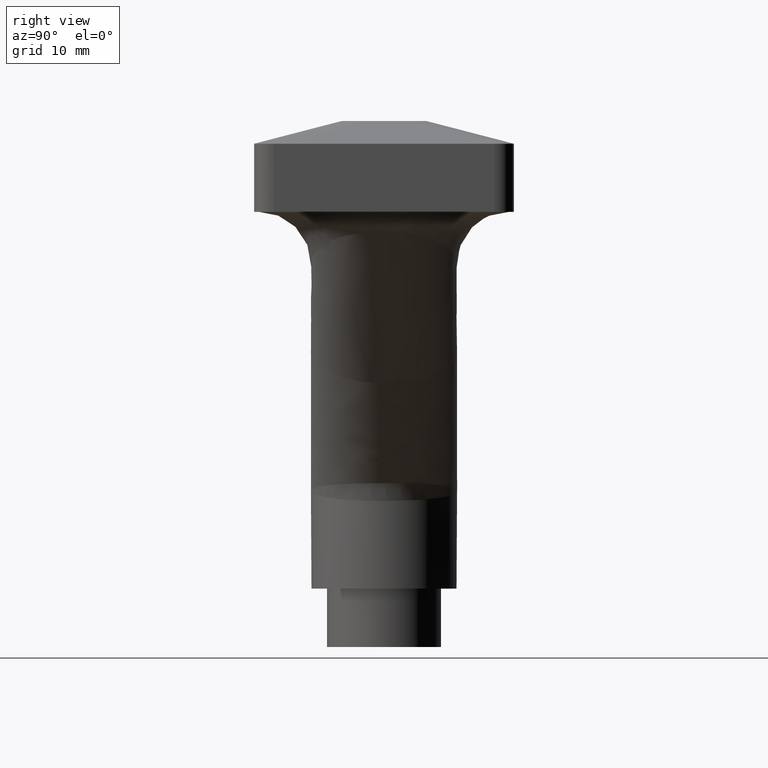
[diagram: clean part render]
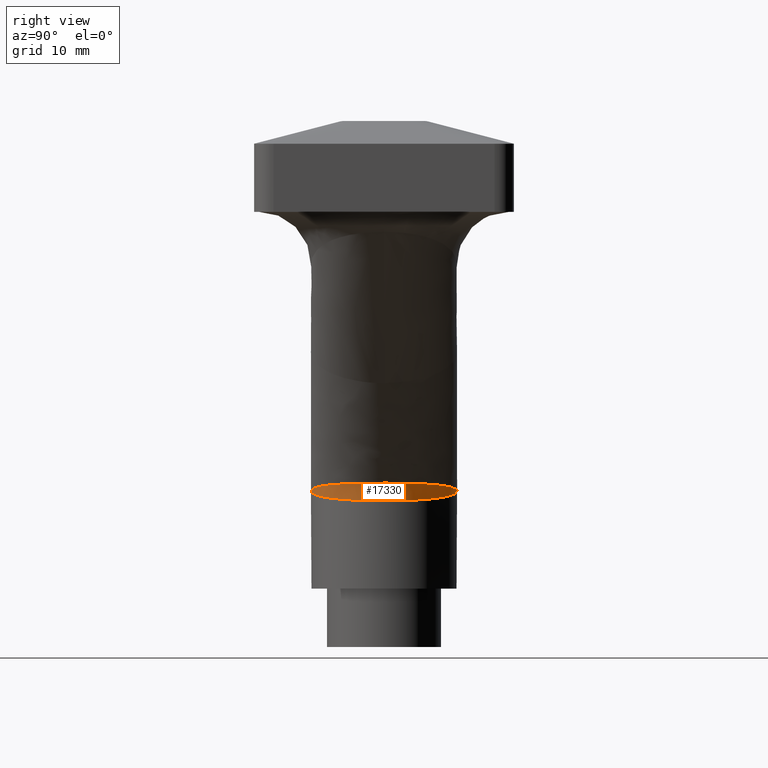
[diagram: same view with one face highlighted and labeled with its STEP entity id]
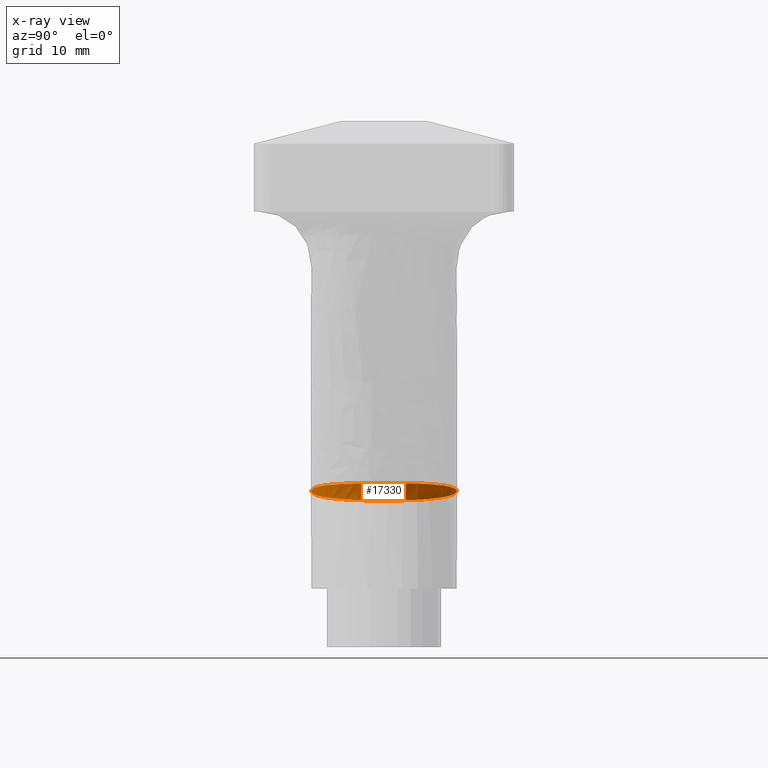
[diagram: x-ray of the same camera — body ghosted, the highlighted face saturated]
A machine part, right view. The second image highlights one B-rep face of the part: STEP entity #17330.
The next image is the same camera in x-ray: the body ghosted, the highlighted face saturated — about 0% of this face is hidden behind the body in this view.
In plain terms, the highlighted face is a freeform B-spline surface patch.
Its self-contained STEP definition (entity closure, byte-faithful):
#2 = CARTESIAN_POINT ( 'NONE',  ( -14.46911674401709469, 0.7947414116044511090, -41.76113849630957731 ) ) ;
#65 = CARTESIAN_POINT ( 'NONE',  ( -15.95157075134375368, -3.928114064448408271, -43.00325043594772012 ) ) ;
#126 = CARTESIAN_POINT ( 'NONE',  ( -17.06950707961534874, 7.141244198358809747, -41.93342681178742026 ) ) ;
#184 = CARTESIAN_POINT ( 'NONE',  ( -16.24075712462175503, 4.630883620239373499, -43.00446631939300346 ) ) ;
#212 = CARTESIAN_POINT ( 'NONE',  ( -18.67549453337363019, -8.652442950526745946, -42.06809636578782374 ) ) ;
#252 = CARTESIAN_POINT ( 'NONE',  ( -16.73247225243718717, -5.594318608624479161, -43.00673226206051680 ) ) ;
#253 = CARTESIAN_POINT ( 'NONE',  ( -25.58216729560727742, 11.21397373183285495, -43.13660839719678108 ) ) ;
#274 = CARTESIAN_POINT ( 'NONE',  ( -24.97044085197500252, -11.16962558149342755, -42.79392909316064930 ) ) ;
#313 = CARTESIAN_POINT ( 'NONE',  ( -17.56832688359192574, -7.687568679236650659, -41.97111431806030168 ) ) ;
#364 = CARTESIAN_POINT ( 'NONE',  ( -18.76308947396244520, -8.175703411586049185, -43.01395758778073741 ) ) ;
#366 = CARTESIAN_POINT ( 'NONE',  ( -23.59614004035501367, -10.89316419302977401, -43.42886566051410568 ) ) ;
#424 = CARTESIAN_POINT ( 'NONE',  ( -26.49744186247774280, -11.24999970915255965, -43.00000000000000711 ) ) ;
#425 = CARTESIAN_POINT ( 'NONE',  ( -15.62026678717410810, 2.957028310466824461, -44.43805212797568771 ) ) ;
#479 = CARTESIAN_POINT ( 'NONE',  ( -15.24926391848091711, -0.7351613917972392720, -44.47769005091761585 ) ) ;
#537 = CARTESIAN_POINT ( 'NONE',  ( -24.97935621732695211, -11.17055455412848808, -42.79511878126804447 ) ) ;
#538 = CARTESIAN_POINT ( 'NONE',  ( -22.91557309642571028, 10.68927373741837883, -43.52476940037698228 ) ) ;
#615 = CARTESIAN_POINT ( 'NONE',  ( -21.30311468171667144, 10.22483602625616683, -42.33754735207398312 ) ) ;
#1178 = B_SPLINE_CURVE_WITH_KNOTS ( 'NONE', 3,
 ( #11539, #14213, #15501, #5770, #7249, #253, #11483, #12869, #14276, #538, #4830, #11596, #11762, #4599, #17325, #14611, #6235, #14500, #3353, #10177, #3176, #425, #6176, #10401, #3295, #10345, #479, #12992, #8985, #15964, #1766, #3234, #15854, #17384, #14388, #10228, #16021, #7650, #1999, #6009, #11818, #7592, #17443, #366, #1825, #11654, #1942, #8921, #7481, #15796, #6114, #3413, #8869 ),
 .UNSPECIFIED., .F., .F.,
 ( 4, 2, 1, 2, 2, 2, 2, 2, 2, 2, 2, 2, 2, 2, 2, 2, 2, 2, 2, 2, 2, 2, 2, 2, 2, 2, 4 ),
 ( -3.937414685807313284E-05, 0.0002351514313479150810, 0.0005096770095539032881, 0.001058728165965872221, 0.002156830478789810955, 0.004353035104437684086, 0.006549239730085557216, 0.007647342042909500287, 0.008745444355733442490, 0.01094164898138131649, 0.01313785360702918702, 0.01533405823267705928, 0.01643216054550099281, 0.01753026285832492981, 0.01972646748397280034, 0.02082456979679673040, 0.02192267210962066393, 0.02411887673526854139, 0.02631508136091641192, 0.02741318367374035239, 0.02851128598656428939, 0.03070749061221216339, 0.03290369523786003392, 0.03400179755068397786, 0.03455084870709595329, 0.03482537428530194101, 0.03509989986350793567 ),
 .UNSPECIFIED. ) ;
#1231 = CARTESIAN_POINT ( 'NONE',  ( -19.91756674808438987, 9.130906617875918840, -43.01602534153756352 ) ) ;
#1355 = CARTESIAN_POINT ( 'NONE',  ( -25.03065169399222611, 11.17727713108887144, -43.21876769676117647 ) ) ;
#1413 = CARTESIAN_POINT ( 'NONE',  ( -16.74385633907577997, 5.614163120921024763, -43.00664902705672432 ) ) ;
#1474 = CARTESIAN_POINT ( 'NONE',  ( -14.77270427090924798, -2.678699447595542793, -41.77793693295127042 ) ) ;
#1532 = CARTESIAN_POINT ( 'NONE',  ( -15.11736108307423798, -3.790551838510282767, -41.79825119869310157 ) ) ;
#1591 = CARTESIAN_POINT ( 'NONE',  ( -14.61777249056108019, 1.960633117555177662, -41.76960416017974609 ) ) ;
#1652 = CARTESIAN_POINT ( 'NONE',  ( -16.94916552547958943, -5.956456785236810880, -44.29470023192562422 ) ) ;
#1707 = CARTESIAN_POINT ( 'NONE',  ( -25.02425128309263513, -11.15885909562503642, -43.21984271476088679 ) ) ;
#1730 = CARTESIAN_POINT ( 'NONE',  ( -19.61380637851528519, -9.315542654955892843, -42.15774418003532276 ) ) ;
#1765 = CARTESIAN_POINT ( 'NONE',  ( -17.56343822535065158, -6.873254689315736243, -44.22434305570918411 ) ) ;
#1766 = CARTESIAN_POINT ( 'NONE',  ( -15.84169776112975825, -3.619465920377436863, -44.41624822221944413 ) ) ;
#1825 = CARTESIAN_POINT ( 'NONE',  ( -24.66822037685117408, -11.10584601066486599, -43.27231993850022462 ) ) ;
#1843 = CARTESIAN_POINT ( 'NONE',  ( -26.49740553563398748, 11.24999970083354839, -43.00000000000000711 ) ) ;
#1941 = CARTESIAN_POINT ( 'NONE',  ( -19.03779532935992336, -8.427273124601445176, -43.01464925979498588 ) ) ;
#1942 = CARTESIAN_POINT ( 'NONE',  ( -25.57707192295873710, -11.21357904312848319, -43.13775037827159053 ) ) ;
#1999 = CARTESIAN_POINT ( 'NONE',  ( -19.67232502967480201, -8.948819689654499143, -43.96513494312738146 ) ) ;
#2496 = CARTESIAN_POINT ( 'NONE',  ( -20.52648976254179658, 9.540340014360959131, -43.01658091250813953 ) ) ;
#2558 = CARTESIAN_POINT ( 'NONE',  ( -20.84098088874171850, 9.730277911261635992, -43.01669557127725341 ) ) ;
#2678 = CARTESIAN_POINT ( 'NONE',  ( -26.49740553563499645, 11.24999970083354484, -43.00000000000000711 ) ) ;
#2805 = CARTESIAN_POINT ( 'NONE',  ( -15.39620347651425902, 1.844741563594306966, -43.00063812107137551 ) ) ;
#2873 = CARTESIAN_POINT ( 'NONE',  ( -15.25981828269884488, -4.155765258472918333, -41.80691279509106550 ) ) ;
#2934 = CARTESIAN_POINT ( 'NONE',  ( -14.55403909127720574, 1.572363555273426305, -41.76597860410745255 ) ) ;
#2994 = CARTESIAN_POINT ( 'NONE',  ( -15.34334504087632745, 1.493092636255332284, -44.46734173678145652 ) ) ;
#3020 = CARTESIAN_POINT ( 'NONE',  ( -17.52051141143902768, -7.638676014643948520, -41.96722200294333049 ) ) ;
#3059 = CARTESIAN_POINT ( 'NONE',  ( -17.58575260779879201, 7.702156323222792977, -41.97409463847689182 ) ) ;
#3141 = CARTESIAN_POINT ( 'NONE',  ( -15.55563297271906009, -4.812852126086182736, -41.82555227633538664 ) ) ;
#3175 = CARTESIAN_POINT ( 'NONE',  ( -19.89999321472025429, -9.118219268827758128, -43.01623359207562913 ) ) ;
#3176 = CARTESIAN_POINT ( 'NONE',  ( -15.83658169739675792, 3.660172870090232955, -44.41510499741705331 ) ) ;
#3233 = CARTESIAN_POINT ( 'NONE',  ( -24.66200168467489462, -11.10485239208488117, -43.27323462275182919 ) ) ;
#3234 = CARTESIAN_POINT ( 'NONE',  ( -15.96786451558549658, -3.971748677838647712, -44.40282091487250682 ) ) ;
#3295 = CARTESIAN_POINT ( 'NONE',  ( -15.26926728597367244, 0.7560250582683490927, -44.47521263869046493 ) ) ;
#3352 = CARTESIAN_POINT ( 'NONE',  ( -18.42504462034126789, -8.450195304203958813, -42.04550487658994484 ) ) ;
#3353 = CARTESIAN_POINT ( 'NONE',  ( -16.76191516113042823, 5.681018418691528460, -44.31355568017183089 ) ) ;
#3413 = CARTESIAN_POINT ( 'NONE',  ( -26.40694965745311151, -11.24997913212934897, -43.01360129326869242 ) ) ;
#3459 = VERTEX_POINT ( 'NONE', #6076 ) ;
#3924 = CARTESIAN_POINT ( 'NONE',  ( -19.62315439718236476, 8.911310303245075559, -43.01558385284661057 ) ) ;
#3988 = CARTESIAN_POINT ( 'NONE',  ( -20.66948983342302526, 9.910744197856761417, -42.26890454295485000 ) ) ;
#4106 = CARTESIAN_POINT ( 'NONE',  ( -20.33479185297075986, 9.736704850860336435, -42.23319516319197930 ) ) ;
#4231 = CARTESIAN_POINT ( 'NONE',  ( -16.39674211422352457, 4.962396347060452406, -43.00515662234126779 ) ) ;
#4299 = CARTESIAN_POINT ( 'NONE',  ( -15.34155777001407905, 1.478859367613657216, -43.00038810729191141 ) ) ;
#4361 = CARTESIAN_POINT ( 'NONE',  ( -16.23079218618648767, -4.608996626774374050, -43.00452071070296256 ) ) ;
#4425 = CARTESIAN_POINT ( 'NONE',  ( -15.25038250020901387, 0.3836531870640085273, -44.47726192814077706 ) ) ;
#4448 = CARTESIAN_POINT ( 'NONE',  ( -16.33176998081586362, -6.148012655563179329, -41.87790047838266361 ) ) ;
#4487 = CARTESIAN_POINT ( 'NONE',  ( -15.83401087116536132, 3.652386813083718486, -44.41537941161394087 ) ) ;
#4598 = CARTESIAN_POINT ( 'NONE',  ( -21.51627089436509621, -10.11306818974757071, -43.72132958674882985 ) ) ;
#4599 = CARTESIAN_POINT ( 'NONE',  ( -19.68881417153165359, 8.961364230379690099, -43.96034986496109553 ) ) ;
#4659 = CARTESIAN_POINT ( 'NONE',  ( -21.32696826786933642, -10.23573277808021054, -42.33892419355640158 ) ) ;
#4676 = CARTESIAN_POINT ( 'NONE',  ( -15.56636670400174438, 4.829636278778485448, -41.82735416059172451 ) ) ;
#4705 = CARTESIAN_POINT ( 'NONE',  ( -26.12834670329180398, -11.24991578060141251, -43.05547990984598528 ) ) ;
#4788 = CARTESIAN_POINT ( 'NONE',  ( -14.44738675272971129, 0.3956377533312323558, -41.75989195142176413 ) ) ;
#4830 = CARTESIAN_POINT ( 'NONE',  ( -21.54799188290501633, 10.12848976248457689, -43.71490185306364396 ) ) ;
#4907 = CARTESIAN_POINT ( 'NONE',  ( -17.02172422566618337, 7.084969823060153438, -41.92975248700832935 ) ) ;
#5343 = CARTESIAN_POINT ( 'NONE',  ( -19.10535093480466884, 8.486315337945294246, -44.03428308461354845 ) ) ;
#5468 = CARTESIAN_POINT ( 'NONE',  ( -18.82818457912297561, 8.236623947191356265, -44.06878034061466565 ) ) ;
#5581 = CARTESIAN_POINT ( 'NONE',  ( -21.82596193641333571, 10.24005608079314555, -43.01622181056117000 ) ) ;
#5645 = CARTESIAN_POINT ( 'NONE',  ( -15.32028846530202593, -1.451492317450446823, -43.00031343722828581 ) ) ;
#5709 = CARTESIAN_POINT ( 'NONE',  ( -15.24928493011656805, -0.7265711148341090775, -42.99997820809763738 ) ) ;
#5769 = CARTESIAN_POINT ( 'NONE',  ( -16.40712043956797572, -4.983419930667337461, -44.35518282448214933 ) ) ;
#5770 = CARTESIAN_POINT ( 'NONE',  ( -26.13006095518148442, 11.24429138543998619, -43.05498504087139366 ) ) ;
#5780 = FACE_OUTER_BOUND ( 'NONE', #7194, .T. ) ;
#5795 = CARTESIAN_POINT ( 'NONE',  ( -25.73073873401994405, -11.23374277655336329, -42.89589745862171810 ) ) ;
#5829 = CARTESIAN_POINT ( 'NONE',  ( -15.61781907500206756, -2.876788785848626961, -43.00170477885787790 ) ) ;
#5891 = CARTESIAN_POINT ( 'NONE',  ( -14.86840856154816848, 3.101862607182154008, -41.78412896328880066 ) ) ;
#5913 = CARTESIAN_POINT ( 'NONE',  ( -22.73432130963582409, -10.73974717088506914, -42.50524593702208875 ) ) ;
#5952 = CARTESIAN_POINT ( 'NONE',  ( -24.60548484657245183, -11.12336474996875779, -42.74551364603286885 ) ) ;
#6008 = CARTESIAN_POINT ( 'NONE',  ( -23.58702672575732251, -10.89086886029172341, -43.43018293488581349 ) ) ;
#6009 = CARTESIAN_POINT ( 'NONE',  ( -19.96763417237547600, -9.166489074497082612, -43.92704812923691549 ) ) ;
#6063 = CARTESIAN_POINT ( 'NONE',  ( -22.76429302119854370, -10.74807910921737353, -42.50895823809206320 ) ) ;
#6076 = CARTESIAN_POINT ( 'NONE',  ( -26.49744186247852085, -11.24999970915255787, -43.00000000000000000 ) ) ;
#6082 = CARTESIAN_POINT ( 'NONE',  ( -20.61203853632175509, 9.902468620232543373, -42.26142051268448796 ) ) ;
#6114 = CARTESIAN_POINT ( 'NONE',  ( -26.31372860708166783, -11.24883578088096492, -43.02760072011336234 ) ) ;
#6175 = CARTESIAN_POINT ( 'NONE',  ( -18.72623010008945599, -8.691917467369689732, -42.07275359524980018 ) ) ;
#6176 = CARTESIAN_POINT ( 'NONE',  ( -15.39973109540211027, 1.866563164859262880, -44.46139367190538394 ) ) ;
#6196 = CARTESIAN_POINT ( 'NONE',  ( -15.09625901240593393, 3.785277722537451872, -41.79751512003887370 ) ) ;
#6197 = ORIENTED_EDGE ( 'NONE', *, *, #14512, .F. ) ;
#6235 = CARTESIAN_POINT ( 'NONE',  ( -18.05286347208557629, 7.466853264604533358, -44.16377745652111741 ) ) ;
#6255 = CARTESIAN_POINT ( 'NONE',  ( -14.52694335336028963, -1.526745321984547932, -41.76398841502003023 ) ) ;
#6492 = CARTESIAN_POINT ( 'NONE',  ( -26.49740553563398748, 11.24999970083354839, -43.00000000000000711 ) ) ;
#6745 = CARTESIAN_POINT ( 'NONE',  ( -26.49740553563498935, 11.24999970083354484, -43.00000000000000000 ) ) ;
#6812 = CARTESIAN_POINT ( 'NONE',  ( -22.85842989001862691, 10.67045362902019789, -43.01464251272108186 ) ) ;
#6881 = CARTESIAN_POINT ( 'NONE',  ( -26.49740553563499290, 11.24999970083354484, -43.00000000000000711 ) ) ;
#6935 = CARTESIAN_POINT ( 'NONE',  ( -21.35560053430533856, 10.22788666143502567, -42.34485739771651680 ) ) ;
#6995 = CARTESIAN_POINT ( 'NONE',  ( -20.89624579653429848, 9.761915115364624640, -43.80225050828494915 ) ) ;
#7047 =( BOUNDED_SURFACE ( )  B_SPLINE_SURFACE ( 3, 2, ( 
 ( #2678, #6881, #6745 ),
 ( #15248, #8223, #9554 ),
 ( #1355, #9742, #18030 ),
 ( #9616, #18149, #15312 ),
 ( #12382, #6812, #11171 ),
 ( #10990, #5581, #8404 ),
 ( #15125, #15379, #6935 ),
 ( #6995, #2558, #3988 ),
 ( #18088, #2496, #4106 ),
 ( #13852, #1231, #17960 ),
 ( #10923, #3924, #11054 ),
 ( #5343, #15187, #12434 ),
 ( #5468, #16535, #16654 ),
 ( #9680, #16912, #3059 ),
 ( #12810, #12688, #126 ),
 ( #15437, #12621, #16969 ),
 ( #9937, #1413, #8580 ),
 ( #15499, #4231, #7247 ),
 ( #8457, #184, #11358 ),
 ( #4487, #11236, #11418 ),
 ( #9997, #14275, #5891 ),
 ( #9803, #2805, #1591 ),
 ( #2994, #4299, #2934 ),
 ( #9864, #7124, #2 ),
 ( #4425, #17027, #12866 ),
 ( #15675, #5709, #8519 ),
 ( #8646, #5645, #7057 ),
 ( #7314, #17088, #1474 ),
 ( #14212, #5829, #14032 ),
 ( #16847, #12753, #1532 ),
 ( #11298, #65, #2873 ),
 ( #14095, #4361, #14148 ),
 ( #5769, #15562, #7184 ),
 ( #15620, #252, #10059 ),
 ( #1652, #11482, #8697 ),
 ( #1765, #7365, #10344 ),
 ( #15795, #8760, #313 ),
 ( #8920, #364, #3352 ),
 ( #17260, #1941, #6175 ),
 ( #11595, #14335, #15733 ),
 ( #17324, #3175, #7425 ),
 ( #12991, #10118, #10176 ),
 ( #4598, #14386, #4659 ),
 ( #7480, #8868, #6063 ),
 ( #6008, #17197, #13102 ),
 ( #3233, #14442, #5952 ),
 ( #1707, #8812, #537 ),
 ( #17144, #13164, #11761 ),
 ( #4705, #11538, #15909 ),
 ( #15963, #7590, #424 ) ),
 .UNSPECIFIED., .F., .F., .T. ) 
 B_SPLINE_SURFACE_WITH_KNOTS ( ( 4, 2, 2, 2, 2, 2, 2, 2, 2, 2, 2, 2, 2, 2, 2, 2, 2, 2, 2, 2, 2, 2, 2, 2, 4 ),
 ( 3, 3 ),
 ( -3.531313010142214740E-05, 0.003128795371774196251, 0.006292903873649814683, 0.007874958124587622815, 0.009457012375525432682, 0.01103906662646324255, 0.01262112087740105068, 0.01578522937927667041, 0.01736728363021447855, 0.01894933788115228668, 0.02211344638302790294, 0.02369550063396571454, 0.02527755488490352268, 0.02844166338677914241, 0.03002371763771695054, 0.03160577188865475867, 0.03318782613959256333, 0.03476988039053037494, 0.03793398889240599814, 0.03951604314334380974, 0.04109809739428161440, 0.04426220589615723067, 0.04742631439803285387, 0.04900836864897066547, 0.05059042289990847013 ),
 ( 0.000000000000000000, 1.000000000000000000 ),
 .UNSPECIFIED. ) 
 GEOMETRIC_REPRESENTATION_ITEM ( )  RATIONAL_B_SPLINE_SURFACE ( (
 ( 1.000000000000000000, 1.000000000000000000, 1.000000000000000000),
 ( 1.000000000000000000, 1.000001144003102693, 1.000000000000000000),
 ( 1.000000000000000000, 0.9992998885522287322, 1.000000000000000000),
 ( 1.000000000000000000, 0.9967644418637630066, 1.000000000000000000),
 ( 1.000000000000000000, 0.9949297557798624236, 1.000000000000000000),
 ( 1.000000000000000000, 0.9915642121715934065, 1.000000000000000000),
 ( 1.000000000000000000, 0.9903555855651382522, 1.000000000000000000),
 ( 1.000000000000000000, 0.9878394059362067825, 1.000000000000000000),
 ( 1.000000000000000000, 0.9865292988718407097, 1.000000000000000000),
 ( 1.000000000000000000, 0.9838571768817826468, 1.000000000000000000),
 ( 1.000000000000000000, 0.9824951299232520530, 1.000000000000000000),
 ( 1.000000000000000000, 0.9797653570634301534, 1.000000000000000000),
 ( 1.000000000000000000, 0.9783914612676958278, 1.000000000000000000),
 ( 1.000000000000000000, 0.9744052435302573700, 1.000000000000000000),
 ( 1.000000000000000000, 0.9719104090331573964, 1.000000000000000000),
 ( 1.000000000000000000, 0.9685653681707522278, 1.000000000000000000),
 ( 1.000000000000000000, 0.9675149120254415980, 1.000000000000000000),
 ( 1.000000000000000000, 0.9655677400812561206, 1.000000000000000000),
 ( 1.000000000000000000, 0.9646856960541041470, 1.000000000000000000),
 ( 1.000000000000000000, 0.9623169222705802994, 1.000000000000000000),
 ( 1.000000000000000000, 0.9611057950076633549, 1.000000000000000000),
 ( 1.000000000000000000, 0.9598667827943547781, 1.000000000000000000),
 ( 1.000000000000000000, 0.9595509528134221755, 1.000000000000000000),
 ( 1.000000000000000000, 0.9591270426820982520, 1.000000000000000000),
 ( 1.000000000000000000, 0.9590168938192819015, 1.000000000000000000),
 ( 1.000000000000000000, 0.9589948807945070097, 1.000000000000000000),
 ( 1.000000000000000000, 0.9593890145601331465, 1.000000000000000000),
 ( 1.000000000000000000, 0.9605701075584159865, 1.000000000000000000),
 ( 1.000000000000000000, 0.9610628703868930867, 1.000000000000000000),
 ( 1.000000000000000000, 0.9622501689029090421, 1.000000000000000000),
 ( 1.000000000000000000, 0.9629472629338422518, 1.000000000000000000),
 ( 1.000000000000000000, 0.9645211193381542092, 1.000000000000000000),
 ( 1.000000000000000000, 0.9653997833671998929, 1.000000000000000000),
 ( 1.000000000000000000, 0.9673337126609562464, 1.000000000000000000),
 ( 1.000000000000000000, 0.9683820187384709621, 1.000000000000000000),
 ( 1.000000000000000000, 0.9717201207048915546, 1.000000000000000000),
 ( 1.000000000000000000, 0.9742150753950555853, 1.000000000000000000),
 ( 1.000000000000000000, 0.9782064269709648263, 1.000000000000000000),
 ( 1.000000000000000000, 0.9795842455386065684, 1.000000000000000000),
 ( 1.000000000000000000, 0.9823264124876160963, 1.000000000000000000),
 ( 1.000000000000000000, 0.9836954584335216856, 1.000000000000000000),
 ( 1.000000000000000000, 0.9877262622932598823, 1.000000000000000000),
 ( 1.000000000000000000, 0.9903181966738240360, 1.000000000000000000),
 ( 1.000000000000000000, 0.9948460131845121568, 1.000000000000000000),
 ( 1.000000000000000000, 0.9967070825714126059, 1.000000000000000000),
 ( 1.000000000000000000, 0.9986409424307131077, 1.000000000000000000),
 ( 1.000000000000000000, 0.9991428899986755097, 1.000000000000000000),
 ( 1.000000000000000000, 0.9998230822184573929, 1.000000000000000000),
 ( 1.000000000000000000, 1.000000957036435212, 1.000000000000000000),
 ( 1.000000000000000000, 1.000000000000000000, 1.000000000000000000) ) ) 
 REPRESENTATION_ITEM ( '' )  SURFACE ( )  );
#7057 = CARTESIAN_POINT ( 'NONE',  ( -14.52882815546633744, -1.545392978177081877, -41.76408624595087105 ) ) ;
#7124 = CARTESIAN_POINT ( 'NONE',  ( -15.26880179428504469, 0.7470041701457573735, -43.00005710907509382 ) ) ;
#7184 = CARTESIAN_POINT ( 'NONE',  ( -15.75987028554082947, -5.208972295907273953, -41.83879389041467789 ) ) ;
#7194 = EDGE_LOOP ( 'NONE', ( #6197, #12504 ) ) ;
#7210 = CARTESIAN_POINT ( 'NONE',  ( -23.47081771630665159, -10.93041374901411977, -42.59762345750834100 ) ) ;
#7247 = CARTESIAN_POINT ( 'NONE',  ( -15.77305529030159903, 5.228698687517636223, -41.84085220295630592 ) ) ;
#7249 = CARTESIAN_POINT ( 'NONE',  ( -25.85513723581858869, 11.23411476709549284, -43.09603706259993317 ) ) ;
#7275 = CARTESIAN_POINT ( 'NONE',  ( -18.37442468150936392, -8.407903276011357008, -42.04099592436256927 ) ) ;
#7314 = CARTESIAN_POINT ( 'NONE',  ( -15.53571221892885212, -2.545911642927319196, -44.44837939546611238 ) ) ;
#7334 = CARTESIAN_POINT ( 'NONE',  ( -14.86323113518371919, -3.014314770272106703, -41.78315085765009229 ) ) ;
#7365 = CARTESIAN_POINT ( 'NONE',  ( -17.52595877720424866, -6.823850732787482443, -43.00998785597016649 ) ) ;
#7425 = CARTESIAN_POINT ( 'NONE',  ( -19.66209335745218212, -9.345936191931853543, -42.16256763708756949 ) ) ;
#7480 = CARTESIAN_POINT ( 'NONE',  ( -22.88595737832346799, -10.67943818454613769, -43.53050952619507541 ) ) ;
#7481 = CARTESIAN_POINT ( 'NONE',  ( -26.03720196527531527, -11.24085519363162966, -43.06904394251615287 ) ) ;
#7510 = B_SPLINE_CURVE_WITH_KNOTS ( 'NONE', 3,
 ( #8544, #16992, #5795, #274, #14295, #7210, #5913, #15699, #10139, #1730, #8605, #212, #7275, #3020, #12829, #4448, #14242, #11561, #3141, #17107, #17052, #7334, #8720, #6255, #11778, #4788, #11892, #9126, #13299, #7610, #6196, #4676, #16040, #17405, #8889, #4907, #7672, #14694, #14576, #10248, #9007, #6082, #615, #10422, #15983, #17463, #16101, #1843 ),
 .UNSPECIFIED., .F., .F.,
 ( 4, 2, 2, 2, 2, 2, 2, 2, 2, 2, 2, 2, 2, 2, 2, 2, 2, 2, 2, 2, 2, 2, 2, 4 ),
 ( -3.314411086286442066E-05, 0.001126460717489166305, 0.002286065545841196780, 0.004605275202545258163, 0.006924484859249319980, 0.008084089687601355226, 0.009243694515953389604, 0.01156290417265747050, 0.01272250900100951355, 0.01388211382936155487, 0.01504171865771359445, 0.01620132348606563577, 0.01852053314276972187, 0.01968013797112175972, 0.02083974279947379757, 0.02315895245617787673, 0.02431855728452992152, 0.02547816211288195937, 0.02779737176958604200, 0.02895697659793808332, 0.03011658142629012463, 0.03243579108299420033, 0.03475500073969828990, 0.03707421039640236560 ),
 .UNSPECIFIED. ) ;
#7590 = CARTESIAN_POINT ( 'NONE',  ( -26.49744186247774635, -11.24999970915255965, -43.00000000000000711 ) ) ;
#7592 = CARTESIAN_POINT ( 'NONE',  ( -21.52919732205071313, -10.11931277237178506, -43.71955857782110400 ) ) ;
#7610 = CARTESIAN_POINT ( 'NONE',  ( -14.85719317031429831, 3.061333257975503042, -41.78347134121836604 ) ) ;
#7650 = CARTESIAN_POINT ( 'NONE',  ( -19.10087774993497689, -8.482423549136516527, -44.03763272104424686 ) ) ;
#7672 = CARTESIAN_POINT ( 'NONE',  ( -17.53350472101876889, 7.648889652399719630, -41.96983037375650838 ) ) ;
#8223 = CARTESIAN_POINT ( 'NONE',  ( -25.74634361648872982, 11.24982649166699034, -43.00373962407318373 ) ) ;
#8404 = CARTESIAN_POINT ( 'NONE',  ( -21.70782299731956044, 10.37127875423109025, -42.38519749676044057 ) ) ;
#8457 = CARTESIAN_POINT ( 'NONE',  ( -16.25866303602085239, 4.670407431095934925, -44.36909565094221364 ) ) ;
#8519 = CARTESIAN_POINT ( 'NONE',  ( -14.44597079574865717, -0.7733580040870052796, -41.75967150709422526 ) ) ;
#8544 = CARTESIAN_POINT ( 'NONE',  ( -26.49744186247852085, -11.24999970915255787, -43.00000000000000000 ) ) ;
#8580 = CARTESIAN_POINT ( 'NONE',  ( -16.16910380901047617, 5.897851307365439943, -41.86783704183460486 ) ) ;
#8605 = CARTESIAN_POINT ( 'NONE',  ( -19.29488762788049172, -9.105838059739131296, -42.12645107730225646 ) ) ;
#8646 = CARTESIAN_POINT ( 'NONE',  ( -15.32172947777243444, -1.465557467605220321, -44.47046481793483252 ) ) ;
#8697 = CARTESIAN_POINT ( 'NONE',  ( -16.36818758703275734, -6.201313927863756348, -41.88048521841904659 ) ) ;
#8720 = CARTESIAN_POINT ( 'NONE',  ( -14.76447804007259279, -2.645136980152075878, -41.77746538713096669 ) ) ;
#8760 = CARTESIAN_POINT ( 'NONE',  ( -17.98555434147398202, -7.390207233744013671, -43.01170927691475754 ) ) ;
#8812 = CARTESIAN_POINT ( 'NONE',  ( -25.00265730983311485, -11.15618069844662408, -43.00715267748444148 ) ) ;
#8868 = CARTESIAN_POINT ( 'NONE',  ( -22.83825603672310223, -10.66358039855338902, -43.01485601116987567 ) ) ;
#8869 = CARTESIAN_POINT ( 'NONE',  ( -26.49744186247852085, -11.24999970915255787, -43.00000000000000000 ) ) ;
#8889 = CARTESIAN_POINT ( 'NONE',  ( -16.34324053834527746, 6.160750475966376705, -41.88006857843325292 ) ) ;
#8920 = CARTESIAN_POINT ( 'NONE',  ( -18.81200993297870028, -8.221517772265938717, -44.07361412164941328 ) ) ;
#8921 = CARTESIAN_POINT ( 'NONE',  ( -25.76083038512884116, -11.22720616631809243, -43.11036252621535425 ) ) ;
#8985 = CARTESIAN_POINT ( 'NONE',  ( -15.53710546863395336, -2.552028083967936123, -44.44823484829729665 ) ) ;
#9007 = CARTESIAN_POINT ( 'NONE',  ( -19.62881722192862810, 9.323151914227539194, -42.16079119279969945 ) ) ;
#9126 = CARTESIAN_POINT ( 'NONE',  ( -14.55084544578695116, 1.549003161323783573, -41.76579666187354434 ) ) ;
#9554 = CARTESIAN_POINT ( 'NONE',  ( -25.73527504702457591, 11.24982393901605526, -42.89656285035647443 ) ) ;
#9616 = CARTESIAN_POINT ( 'NONE',  ( -23.60497004380763286, 10.89538021650823474, -43.42635470858242286 ) ) ;
#9680 = CARTESIAN_POINT ( 'NONE',  ( -18.04312539254691927, 7.455781345481207190, -44.16494114235880630 ) ) ;
#9732 = EDGE_CURVE ( 'NONE', #3459, #17295, #7510, .T. ) ;
#9742 = CARTESIAN_POINT ( 'NONE',  ( -25.00805442772269060, 11.17484185393093377, -43.00722897007098311 ) ) ;
#9803 = CARTESIAN_POINT ( 'NONE',  ( -15.39905606445011621, 1.862381870472400669, -44.46146491211614915 ) ) ;
#9864 = CARTESIAN_POINT ( 'NONE',  ( -15.26919010040040803, 0.7544431697845562779, -44.47522101451422571 ) ) ;
#9937 = CARTESIAN_POINT ( 'NONE',  ( -16.76973227510968911, 5.658859138646291420, -44.31228750304354946 ) ) ;
#9997 = CARTESIAN_POINT ( 'NONE',  ( -15.61861752835030615, 2.950543250389393357, -44.43822709210812150 ) ) ;
#10059 = CARTESIAN_POINT ( 'NONE',  ( -16.15423475814663234, -5.878807623244551195, -41.86549531226992826 ) ) ;
#10118 = CARTESIAN_POINT ( 'NONE',  ( -20.81123159169053238, -9.733464759472683525, -43.01708047799972690 ) ) ;
#10139 = CARTESIAN_POINT ( 'NONE',  ( -20.59680241283795255, -9.896178615167675829, -42.25832111027363425 ) ) ;
#10176 = CARTESIAN_POINT ( 'NONE',  ( -20.64061323177012852, -9.917879423285317131, -42.26306506880357006 ) ) ;
#10177 = CARTESIAN_POINT ( 'NONE',  ( -16.40504457734681409, 5.019684287869438322, -44.35313534764622290 ) ) ;
#10228 = CARTESIAN_POINT ( 'NONE',  ( -18.03922836990364331, -7.451351733744624006, -44.16830254242273668 ) ) ;
#10248 = CARTESIAN_POINT ( 'NONE',  ( -19.30985386961887684, 9.113935030668836035, -42.12947335384145475 ) ) ;
#10344 = CARTESIAN_POINT ( 'NONE',  ( -17.05304993419224502, -7.125651147697452004, -41.93065775170627774 ) ) ;
#10345 = CARTESIAN_POINT ( 'NONE',  ( -15.25037637221502074, 0.3843493140076733039, -44.47726236580422210 ) ) ;
#10401 = CARTESIAN_POINT ( 'NONE',  ( -15.34376062669475260, 1.496413789078539391, -44.46729775470961954 ) ) ;
#10422 = CARTESIAN_POINT ( 'NONE',  ( -22.75026577069895239, 10.74382202575083589, -42.50826203046188567 ) ) ;
#10923 = CARTESIAN_POINT ( 'NONE',  ( -19.67674917119461853, 8.952185819097277175, -43.96189538376830797 ) ) ;
#10990 = CARTESIAN_POINT ( 'NONE',  ( -21.87826919987760377, 10.26349032009376572, -43.66896977805122049 ) ) ;
#11054 = CARTESIAN_POINT ( 'NONE',  ( -19.36423900596263792, 9.150613197255465181, -42.13476078043812123 ) ) ;
#11171 = CARTESIAN_POINT ( 'NONE',  ( -22.78554554691839584, 10.75363357972745604, -42.51262362270134076 ) ) ;
#11236 = CARTESIAN_POINT ( 'NONE',  ( -15.82281531475394232, 3.618726676259524044, -43.00259631212179556 ) ) ;
#11298 = CARTESIAN_POINT ( 'NONE',  ( -15.96446957224012486, -3.962667603509965719, -44.40318383841646721 ) ) ;
#11358 = CARTESIAN_POINT ( 'NONE',  ( -15.59413262161303315, 4.885861854932879389, -41.82915085568850344 ) ) ;
#11418 = CARTESIAN_POINT ( 'NONE',  ( -15.11381834823402848, 3.834036819795645368, -41.79856830644770582 ) ) ;
#11482 = CARTESIAN_POINT ( 'NONE',  ( -16.92066980842525226, -5.910648921505598175, -43.00753420793924420 ) ) ;
#11483 = CARTESIAN_POINT ( 'NONE',  ( -25.03878083166675594, 11.16063768196313788, -43.21707896293258955 ) ) ;
#11538 = CARTESIAN_POINT ( 'NONE',  ( -26.12276820319200255, -11.24991451212306437, -43.00188031235590103 ) ) ;
#11539 = CARTESIAN_POINT ( 'NONE',  ( -26.49740553563398748, 11.24999970083354839, -43.00000000000000711 ) ) ;
#11561 = CARTESIAN_POINT ( 'NONE',  ( -15.73154723736372773, -5.156218820118170676, -41.83693266779444997 ) ) ;
#11595 = CARTESIAN_POINT ( 'NONE',  ( -19.65962327305866353, -8.939119051617911538, -43.96676400449425870 ) ) ;
#11596 = CARTESIAN_POINT ( 'NONE',  ( -20.89907700089060327, 9.784021128703042081, -43.80248679753344732 ) ) ;
#11654 = CARTESIAN_POINT ( 'NONE',  ( -25.02940752567524285, -11.15950099878953239, -43.21907991422859396 ) ) ;
#11761 = CARTESIAN_POINT ( 'NONE',  ( -25.73455460516231597, -11.23388443895196076, -42.89641533950324970 ) ) ;
#11762 = CARTESIAN_POINT ( 'NONE',  ( -19.98434714352624653, 9.178371033366461873, -43.92228588905261688 ) ) ;
#11778 = CARTESIAN_POINT ( 'NONE',  ( -14.44621132675872133, -0.7666330156191127898, -41.75968564373633285 ) ) ;
#11818 = CARTESIAN_POINT ( 'NONE',  ( -20.88160206659159357, -9.774016866009374027, -43.80715148692287642 ) ) ;
#11892 = CARTESIAN_POINT ( 'NONE',  ( -14.46831997637551837, 0.7812729513630268796, -41.76109300331083318 ) ) ;
#12382 = CARTESIAN_POINT ( 'NONE',  ( -22.90569029907289789, 10.68606355641094829, -43.52617109434860510 ) ) ;
#12434 = CARTESIAN_POINT ( 'NONE',  ( -18.74598189890107491, 8.704772363907533617, -42.07616157325856676 ) ) ;
#12504 = ORIENTED_EDGE ( 'NONE', *, *, #9732, .F. ) ;
#12621 = CARTESIAN_POINT ( 'NONE',  ( -16.93225303698335438, 5.929369618162263933, -43.00743935147318808 ) ) ;
#12688 = CARTESIAN_POINT ( 'NONE',  ( -17.53895861745852613, 6.840868316007788330, -43.00986114420347661 ) ) ;
#12753 = CARTESIAN_POINT ( 'NONE',  ( -15.82819584739247532, -3.579166263444882645, -43.00268069037029761 ) ) ;
#12810 = CARTESIAN_POINT ( 'NONE',  ( -17.57656618329833265, 6.890233213085124930, -44.21994631563058675 ) ) ;
#12829 = CARTESIAN_POINT ( 'NONE',  ( -17.00939149402502792, -7.074044232185330294, -41.92731274484978599 ) ) ;
#12866 = CARTESIAN_POINT ( 'NONE',  ( -14.44751269549989914, 0.4038921951382804520, -41.75989992850445276 ) ) ;
#12869 = CARTESIAN_POINT ( 'NONE',  ( -24.67992155757657713, 11.10770541093270047, -43.26982977963399435 ) ) ;
#12991 = CARTESIAN_POINT ( 'NONE',  ( -20.86859611108136292, -9.766570500344490924, -43.80889403798377657 ) ) ;
#12992 = CARTESIAN_POINT ( 'NONE',  ( -15.32210131146204724, -1.469250250177829287, -44.47042792044856441 ) ) ;
#13102 = CARTESIAN_POINT ( 'NONE',  ( -23.49333180869479420, -10.93514949060534214, -42.60050976757682406 ) ) ;
#13164 = CARTESIAN_POINT ( 'NONE',  ( -25.74555145376139365, -11.23088048313530685, -43.00373846660210120 ) ) ;
#13299 = CARTESIAN_POINT ( 'NONE',  ( -14.61290611915297077, 1.932862014330561928, -41.76932623289953028 ) ) ;
#13852 = CARTESIAN_POINT ( 'NONE',  ( -19.97214187649584360, 9.169705307226273305, -43.92386690871877875 ) ) ;
#14032 = CARTESIAN_POINT ( 'NONE',  ( -14.87405739576507635, -3.052377135479221071, -41.78378003683396003 ) ) ;
#14095 = CARTESIAN_POINT ( 'NONE',  ( -16.24843054363302031, -4.648167339010639942, -44.37251811871541918 ) ) ;
#14148 = CARTESIAN_POINT ( 'NONE',  ( -15.58088484224847470, -4.864250453206011571, -41.82717365225964556 ) ) ;
#14212 = CARTESIAN_POINT ( 'NONE',  ( -15.62471534605297840, -2.903011162638821308, -44.43912113757312454 ) ) ;
#14213 = CARTESIAN_POINT ( 'NONE',  ( -26.40690797968550640, 11.24997883037219104, -43.01356564793444903 ) ) ;
#14242 = CARTESIAN_POINT ( 'NONE',  ( -16.12015721761097709, -5.824885037059870818, -41.86313994174462749 ) ) ;
#14275 = CARTESIAN_POINT ( 'NONE',  ( -15.61164498235224585, 2.922983191018266425, -43.00162433488255687 ) ) ;
#14276 = CARTESIAN_POINT ( 'NONE',  ( -23.61336168015420967, 10.89747857721910407, -43.42514494134814385 ) ) ;
#14295 = CARTESIAN_POINT ( 'NONE',  ( -24.59329775538077101, -11.12175070483792894, -42.74390088625545303 ) ) ;
#14335 = CARTESIAN_POINT ( 'NONE',  ( -19.60585717865576783, -8.897948279630325530, -43.01578535876291198 ) ) ;
#14386 = CARTESIAN_POINT ( 'NONE',  ( -21.46034139901825100, -10.08605659438201840, -43.01697690210718150 ) ) ;
#14388 = CARTESIAN_POINT ( 'NONE',  ( -17.57247102463930588, -6.885076707867248125, -44.22328917410852256 ) ) ;
#14442 = CARTESIAN_POINT ( 'NONE',  ( -24.63545760665722995, -11.10060338118282530, -43.00872196221978783 ) ) ;
#14500 = CARTESIAN_POINT ( 'NONE',  ( -17.58513956377561271, 6.901415072662622663, -44.21894423145739239 ) ) ;
#14512 = EDGE_CURVE ( 'NONE', #17295, #3459, #1178, .T. ) ;
#14576 = CARTESIAN_POINT ( 'NONE',  ( -18.69040918555202424, 8.661663572839545466, -42.07105290106350992 ) ) ;
#14611 = CARTESIAN_POINT ( 'NONE',  ( -18.83941130619858129, 8.247075794697924067, -44.06739018399785124 ) ) ;
#14694 = CARTESIAN_POINT ( 'NONE',  ( -18.38891769223814521, 8.417445885345212986, -42.04387306792422407 ) ) ;
#15125 = CARTESIAN_POINT ( 'NONE',  ( -21.54404877061308454, 10.10621567672005483, -43.71476697510480847 ) ) ;
#15187 = CARTESIAN_POINT ( 'NONE',  ( -19.05457130741601901, 8.442084808927637241, -43.01446433521932988 ) ) ;
#15248 = CARTESIAN_POINT ( 'NONE',  ( -25.75748423930510356, 11.24982906087911871, -43.11092215864217536 ) ) ;
#15312 = CARTESIAN_POINT ( 'NONE',  ( -23.51245980635362542, 10.93890723420252264, -42.60381991608360863 ) ) ;
#15379 = CARTESIAN_POINT ( 'NONE',  ( -21.49031731373091247, 10.07991669024545089, -43.01651634268271351 ) ) ;
#15437 = CARTESIAN_POINT ( 'NONE',  ( -16.96095120663916944, 5.975296588523483443, -44.29067227654359584 ) ) ;
#15499 = CARTESIAN_POINT ( 'NONE',  ( -16.41726102535476883, 5.003915618618359318, -44.35164607003500947 ) ) ;
#15501 = CARTESIAN_POINT ( 'NONE',  ( -26.31378355748885411, 11.24883403264976778, -43.02751279117750016 ) ) ;
#15562 = CARTESIAN_POINT ( 'NONE',  ( -16.38685303433809892, -4.942193582513666250, -43.00522252467782636 ) ) ;
#15620 = CARTESIAN_POINT ( 'NONE',  ( -16.75811926268433183, -5.638834252456519813, -44.31620524860071697 ) ) ;
#15675 = CARTESIAN_POINT ( 'NONE',  ( -15.24925228236497610, -0.7331510296808438909, -44.47769068952550953 ) ) ;
#15699 = CARTESIAN_POINT ( 'NONE',  ( -21.28711163850054788, -10.21905763204597051, -42.33438410757439385 ) ) ;
#15733 = CARTESIAN_POINT ( 'NONE',  ( -19.34427926744547221, -9.139243759652533328, -42.13124874242362949 ) ) ;
#15795 = CARTESIAN_POINT ( 'NONE',  ( -18.02898886499894004, -7.439667556544373284, -44.16952521630923911 ) ) ;
#15796 = CARTESIAN_POINT ( 'NONE',  ( -26.12935672846347046, -11.24427085329734766, -43.05524535765215433 ) ) ;
#15854 = CARTESIAN_POINT ( 'NONE',  ( -16.39557686045479556, -5.001579221098867656, -44.35661981778767426 ) ) ;
#15909 = CARTESIAN_POINT ( 'NONE',  ( -26.11719339634104742, -11.24991324445085716, -42.94828134265182484 ) ) ;
#15963 = CARTESIAN_POINT ( 'NONE',  ( -26.49744186247774991, -11.24999970915255965, -43.00000000000000711 ) ) ;
#15964 = CARTESIAN_POINT ( 'NONE',  ( -15.62653046611232277, -2.909914167032516374, -44.43893162677155573 ) ) ;
#15983 = CARTESIAN_POINT ( 'NONE',  ( -23.48517732153319315, 10.93317119163799411, -42.60032888766740911 ) ) ;
#16021 = CARTESIAN_POINT ( 'NONE',  ( -18.82379879917483123, -8.232535146211393595, -44.07215383130163389 ) ) ;
#16040 = CARTESIAN_POINT ( 'NONE',  ( -15.74180294037960337, 5.170773737509996693, -41.83878426718529653 ) ) ;
#16101 = CARTESIAN_POINT ( 'NONE',  ( -25.73135561405320360, 11.24982303512010873, -42.89605107613715518 ) ) ;
#16535 = CARTESIAN_POINT ( 'NONE',  ( -18.77931498202606164, 8.191039057840603377, -43.01378189118899087 ) ) ;
#16654 = CARTESIAN_POINT ( 'NONE',  ( -18.44437182479778770, 8.463632740320328196, -42.04882147517680835 ) ) ;
#16847 = CARTESIAN_POINT ( 'NONE',  ( -15.83886910780963753, -3.611035615216988681, -44.41654822858371432 ) ) ;
#16912 = CARTESIAN_POINT ( 'NONE',  ( -17.99963218583048175, 7.406452560847234246, -43.01156111376217694 ) ) ;
#16969 = CARTESIAN_POINT ( 'NONE',  ( -16.38324009488489708, 6.219053920513136546, -41.88292170906795064 ) ) ;
#16992 = CARTESIAN_POINT ( 'NONE',  ( -26.11443183140334057, -11.24991261649858210, -42.94791564679314888 ) ) ;
#17027 = CARTESIAN_POINT ( 'NONE',  ( -15.25036557196318121, 0.3797657376445842670, -42.99997455362299092 ) ) ;
#17052 = CARTESIAN_POINT ( 'NONE',  ( -15.10089345704805197, -3.745242335830138547, -41.79725859915007646 ) ) ;
#17088 = CARTESIAN_POINT ( 'NONE',  ( -15.53046047753808701, -2.522787412619696301, -43.00129681128601078 ) ) ;
#17107 = CARTESIAN_POINT ( 'NONE',  ( -15.24048209949272525, -4.108118430975341795, -41.80572469061847585 ) ) ;
#17144 = CARTESIAN_POINT ( 'NONE',  ( -25.75678935398445546, -11.23145620688237045, -43.11106477201749954 ) ) ;
#17197 = CARTESIAN_POINT ( 'NONE',  ( -23.54669925859655422, -10.88076763795958612, -43.01286750538302073 ) ) ;
#17260 = CARTESIAN_POINT ( 'NONE',  ( -19.08866762019401619, -8.471762245337059127, -44.03916336874861770 ) ) ;
#17295 = VERTEX_POINT ( 'NONE', #6492 ) ;
#17324 = CARTESIAN_POINT ( 'NONE',  ( -19.95477743498761214, -9.157324328046595241, -43.92871592619797383 ) ) ;
#17325 = CARTESIAN_POINT ( 'NONE',  ( -19.11695614328133885, 8.496408927848605686, -44.03282924624250683 ) ) ;
#17330 = ADVANCED_FACE ( 'NONE', ( #5780 ), #7047, .F. ) ;
#17384 = CARTESIAN_POINT ( 'NONE',  ( -16.75094685501735370, -5.662244930716505920, -44.31742260242997844 ) ) ;
#17405 = CARTESIAN_POINT ( 'NONE',  ( -16.13147862612754579, 5.838574944419416823, -41.86522197593343009 ) ) ;
#17443 = CARTESIAN_POINT ( 'NONE',  ( -22.89661045929263494, -10.68292815973763510, -43.52899499873666400 ) ) ;
#17463 = CARTESIAN_POINT ( 'NONE',  ( -24.97560501124797128, 11.18618723269501736, -42.79421266199248208 ) ) ;
#17960 = CARTESIAN_POINT ( 'NONE',  ( -19.68216633376691860, 9.356638947614987600, -42.16612349935808624 ) ) ;
#18030 = CARTESIAN_POINT ( 'NONE',  ( -24.98707786551965526, 11.18700090177661366, -42.79576470796492771 ) ) ;
#18088 = CARTESIAN_POINT ( 'NONE',  ( -20.58188986781854268, 9.574570463751577165, -43.84404450491482663 ) ) ;
#18149 = CARTESIAN_POINT ( 'NONE',  ( -23.56508049978036112, 10.88545494246631229, -43.01267319361084418 ) ) ;